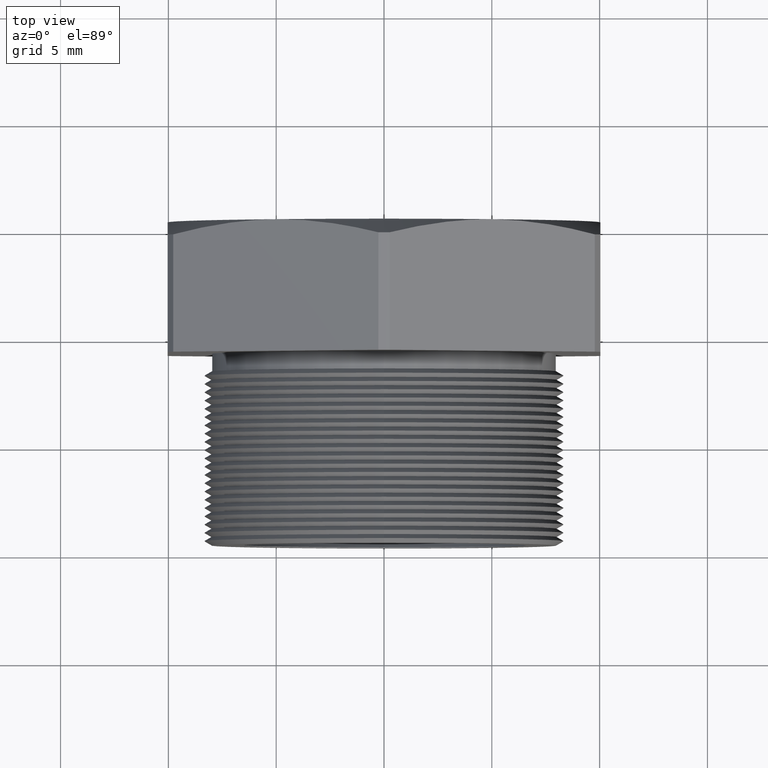
[diagram: clean part render]
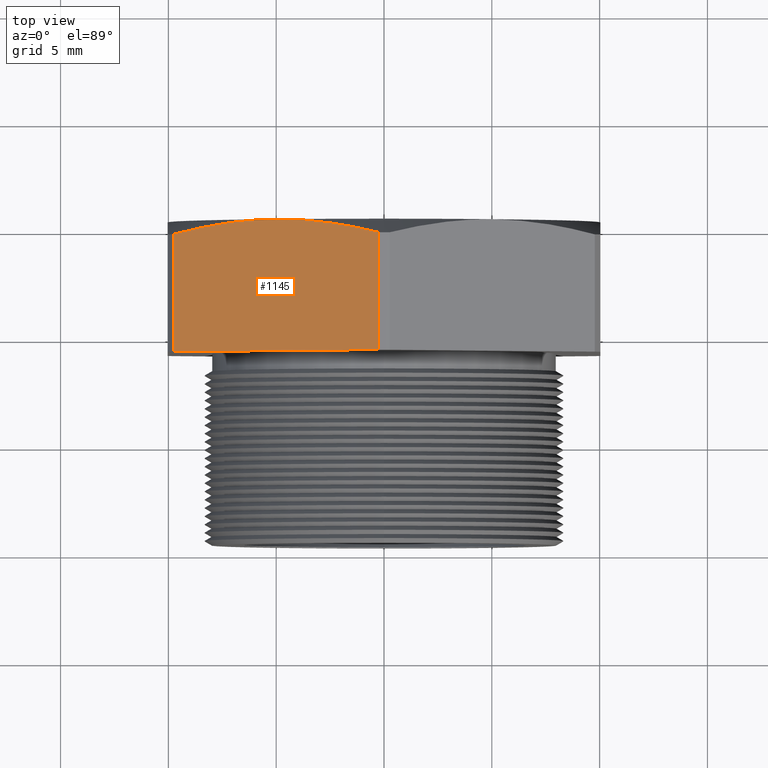
[diagram: same view with one face highlighted and labeled with its STEP entity id]
A machine part, top view. The second image highlights one B-rep face of the part: STEP entity #1145.
In plain terms, the highlighted planar face has unit normal (-0.5, 0, 0.866).
Its self-contained STEP definition (entity closure, byte-faithful):
#1127 = VERTEX_POINT ( 'NONE', #4420 ) ;
#1132 = VERTEX_POINT ( 'NONE', #4452 ) ;
#1133 = EDGE_CURVE ( 'NONE', #1132, #1127, #4451, .T. ) ;
#1136 = ORIENTED_EDGE ( 'NONE', *, *, #1143, .F. ) ;
#1137 = EDGE_CURVE ( 'NONE', #1132, #8317, #4442, .T. ) ;
#1138 = EDGE_CURVE ( 'NONE', #8317, #8109, #4496, .T. ) ;
#1139 = ORIENTED_EDGE ( 'NONE', *, *, #1133, .F. ) ;
#1140 = ORIENTED_EDGE ( 'NONE', *, *, #1137, .T. ) ;
#1141 = ORIENTED_EDGE ( 'NONE', *, *, #1138, .T. ) ;
#1142 = EDGE_LOOP ( 'NONE', ( #1139, #1140, #1141, #1144, #1136 ) ) ;
#1143 = EDGE_CURVE ( 'NONE', #1127, #8108, #4495, .T. ) ;
#1144 = ORIENTED_EDGE ( 'NONE', *, *, #8107, .F. ) ;
#1145 = ADVANCED_FACE ( 'NONE', ( #4485 ), #4484, .T. ) ;
#4420 = CARTESIAN_POINT ( 'NONE',  ( -0.01026000026703719400, 0.1675548905829479500, 0.4501830987437449000 ) ) ;
#4442 = B_SPLINE_CURVE_WITH_KNOTS ( 'NONE', 3,
 ( #4502, #4501, #4500, #4499, #4498, #4497 ),
 .UNSPECIFIED., .F., .F.,
 ( 4, 2, 4 ),
 ( 2.335025902589980200E-007, 0.002760212844509911800, 0.005520192186429564600 ),
 .UNSPECIFIED. ) ;
#4448 = DIRECTION ( 'NONE',  ( -0.0000000000000000000, -1.000000000000000000, -0.0000000000000000000 ) ) ;
#4449 = VECTOR ( 'NONE', #4448, 39.37007874015748100 ) ;
#4450 = CARTESIAN_POINT ( 'NONE',  ( -0.01026000026703719400, 0.0000000000000000000, 0.4501830987437449000 ) ) ;
#4451 = LINE ( 'NONE', #4450, #4449 ) ;
#4452 = CARTESIAN_POINT ( 'NONE',  ( -0.01026000026703719400, 0.3817680770869766300, 0.4501830987437449000 ) ) ;
#4479 = DIRECTION ( 'NONE',  ( 0.8660254037844386000, 0.0000000000000000000, 0.4999999999999998300 ) ) ;
#4480 = DIRECTION ( 'NONE',  ( -0.4999999999999998900, 0.0000000000000000000, 0.8660254037844387100 ) ) ;
#4481 = AXIS2_PLACEMENT_3D ( 'NONE', #4483, #4480, #4479 ) ;
#4483 = CARTESIAN_POINT ( 'NONE',  ( 4.505440556987010000E-017, 0.4075548905829479700, 0.4561067126598044600 ) ) ;
#4484 = PLANE ( 'NONE',  #4481 ) ;
#4485 = FACE_OUTER_BOUND ( 'NONE', #1142, .T. ) ;
#4486 = DIRECTION ( 'NONE',  ( -0.8660254037844386000, 0.0000000000000000000, -0.4999999999999998300 ) ) ;
#4487 = VECTOR ( 'NONE', #4486, 39.37007874015748900 ) ;
#4488 = CARTESIAN_POINT ( 'NONE',  ( 0.03875000000000002700, 0.1675548905829479500, 0.4784790355909024400 ) ) ;
#4489 = CARTESIAN_POINT ( 'NONE',  ( -0.3847399997329628600, 0.3817680770869766300, 0.2339769702459618400 ) ) ;
#4490 = CARTESIAN_POINT ( 'NONE',  ( -0.3538644116588921000, 0.3897502881590466700, 0.2518029993319146300 ) ) ;
#4491 = CARTESIAN_POINT ( 'NONE',  ( -0.3227431943461728800, 0.3962764420413620300, 0.2697708425249218400 ) ) ;
#4492 = CARTESIAN_POINT ( 'NONE',  ( -0.2599588776186196900, 0.4052207272773963300, 0.3060193846884615200 ) ) ;
#4493 = CARTESIAN_POINT ( 'NONE',  ( -0.2286719793528691200, 0.4075548905829478600, 0.3240828838243009500 ) ) ;
#4494 = CARTESIAN_POINT ( 'NONE',  ( -0.1975000000000000100, 0.4075548905829479200, 0.3420800344948533600 ) ) ;
#4495 = LINE ( 'NONE', #4488, #4487 ) ;
#4496 = B_SPLINE_CURVE_WITH_KNOTS ( 'NONE', 3,
 ( #4494, #4493, #4492, #4491, #4490, #4489 ),
 .UNSPECIFIED., .F., .F.,
 ( 4, 2, 4 ),
 ( 0.005520192186429564600, 0.008258536476824108300, 0.01099688076721865000 ),
 .UNSPECIFIED. ) ;
#4497 = CARTESIAN_POINT ( 'NONE',  ( -0.1975000000000000100, 0.4075548905829479200, 0.3420800344948533600 ) ) ;
#4498 = CARTESIAN_POINT ( 'NONE',  ( -0.1660817377447930700, 0.4075548905829479200, 0.3602193766653673000 ) ) ;
#4499 = CARTESIAN_POINT ( 'NONE',  ( -0.1347800776656142300, 0.4051865378565922500, 0.3782913985381633500 ) ) ;
#4500 = CARTESIAN_POINT ( 'NONE',  ( -0.07238150130182610700, 0.3962912005447678500, 0.4143172333988460700 ) ) ;
#4501 = CARTESIAN_POINT ( 'NONE',  ( -0.04128338948296790500, 0.3897884989263424300, 0.4322717366287527300 ) ) ;
#4502 = CARTESIAN_POINT ( 'NONE',  ( -0.01026000026703719400, 0.3817680770869766300, 0.4501830987437449000 ) ) ;
#7338 = CARTESIAN_POINT ( 'NONE',  ( -0.3847399997329628600, 0.3817680770869766300, 0.2339769702459618400 ) ) ;
#7339 = CARTESIAN_POINT ( 'NONE',  ( -0.3847399997329628000, 0.1675548905829479500, 0.2339769702459618100 ) ) ;
#7340 = DIRECTION ( 'NONE',  ( 0.0000000000000000000, 1.000000000000000000, 0.0000000000000000000 ) ) ;
#7341 = VECTOR ( 'NONE', #7340, 39.37007874015748100 ) ;
#7342 = CARTESIAN_POINT ( 'NONE',  ( -0.3847399997329628000, 0.0000000000000000000, 0.2339769702459618100 ) ) ;
#7343 = LINE ( 'NONE', #7342, #7341 ) ;
#7673 = CARTESIAN_POINT ( 'NONE',  ( -0.1975000000000000100, 0.4075548905829479200, 0.3420800344948533600 ) ) ;
#8107 = EDGE_CURVE ( 'NONE', #8108, #8109, #7343, .T. ) ;
#8108 = VERTEX_POINT ( 'NONE', #7339 ) ;
#8109 = VERTEX_POINT ( 'NONE', #7338 ) ;
#8317 = VERTEX_POINT ( 'NONE', #7673 ) ;